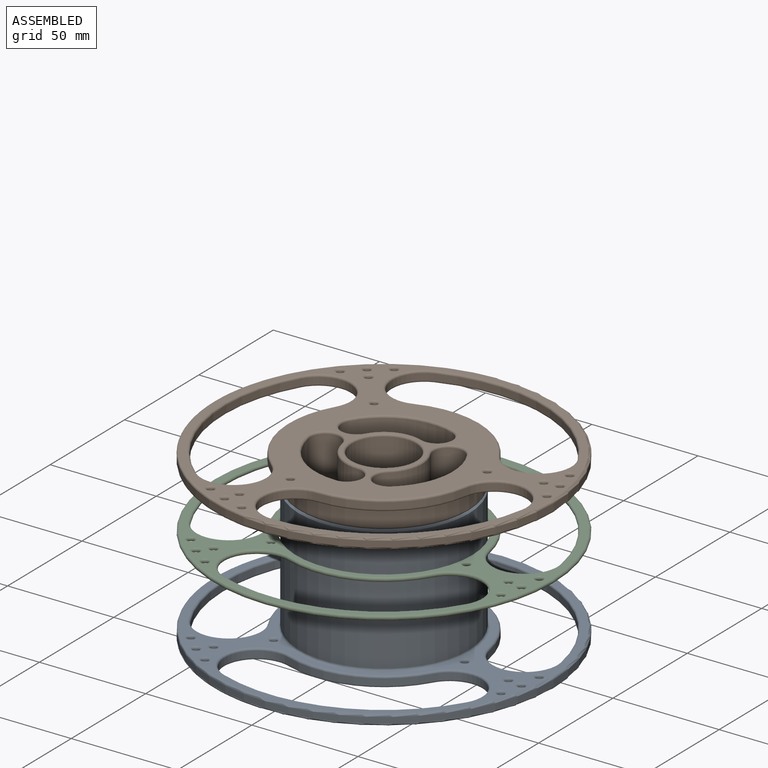
[diagram: assembled view]
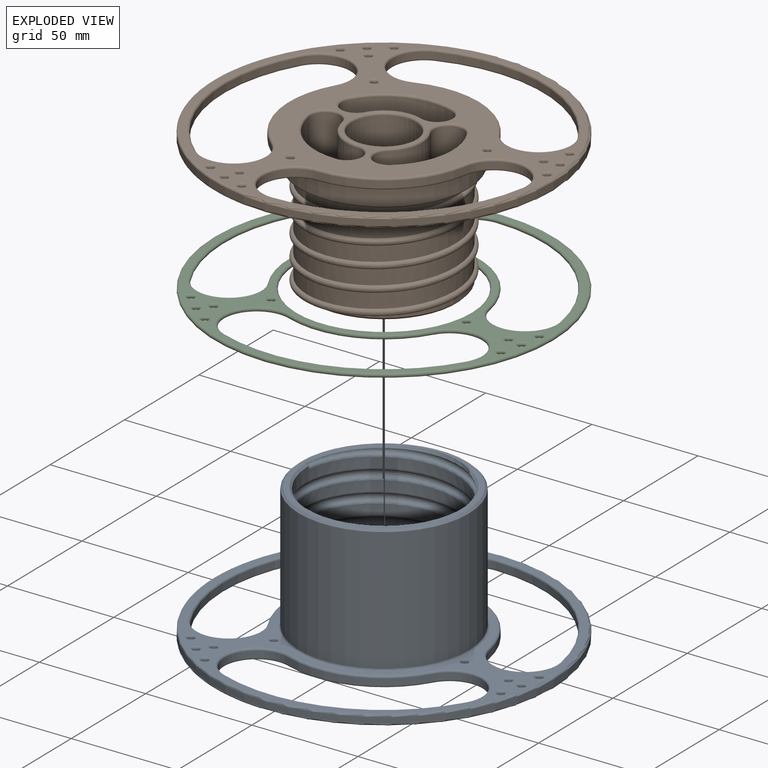
[diagram: exploded view]
GUIDED TOUR — MATED ASSEMBLY (Onshape document 5cb44882db1481e3dcc455d7, AutoMate assembly 5cb44882db1481e3dcc455d7_1ca06b4bcc2b55dcc0c4c54a_33080b575c8e08075111d6f5_default)

This assembly has 3 components, labeled P0..P2 below (a component is one placed occurrence of a part; the same part can appear more than once), held together by 2 mates. A mate is a constraint between two components; its type names the relative motion it leaves free:
  SLIDER — leaves translation along the listed axis free.
Axis/direction vectors are unit vectors and 'through' points are millimeter coordinates, both in the assembly's world frame.

MATES
  1. SLIDER "Slider 2": P0 <-> P2, axis (0.000, 0.000, -1.000) through (-48.98, -62.56, -77.92) mm
  2. SLIDER "Slider 1": P1 <-> P0, axis (0.000, 0.000, 1.000) through (-48.98, -62.56, -68.92) mm

ASSEMBLY ORDER
  1. P0 — the base component [order heuristic]
  2. P1 [order heuristic]
  3. P2 [order heuristic]
Order-tag legend:
  [order heuristic] — this assembly is geometrically interlocked (no collision-free removal order exists), so components are listed in mate-graph order; insertion feasibility is not verified.

Of the 3 components, 1 carries the full construction recipe — the FeatureScript program that regenerates the part's solid from scratch; the rest are supplied as boundary geometry only.
Each toured component is shown spotlighted twice — in the assembled view, then in the exploded view, where a leader line traces a displaced component back to its assembled socket (saturated green if recipe-attached, orange if geometry-only; every other component desaturated gray) — followed by its recipe or geometry summary and the mates that hold it.
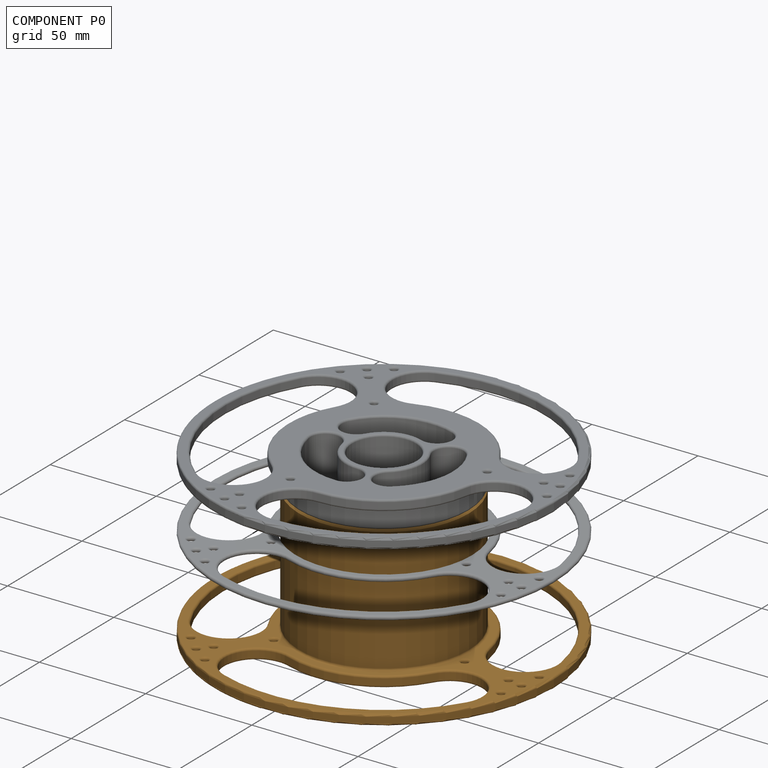
[diagram: component P0 — assembled]
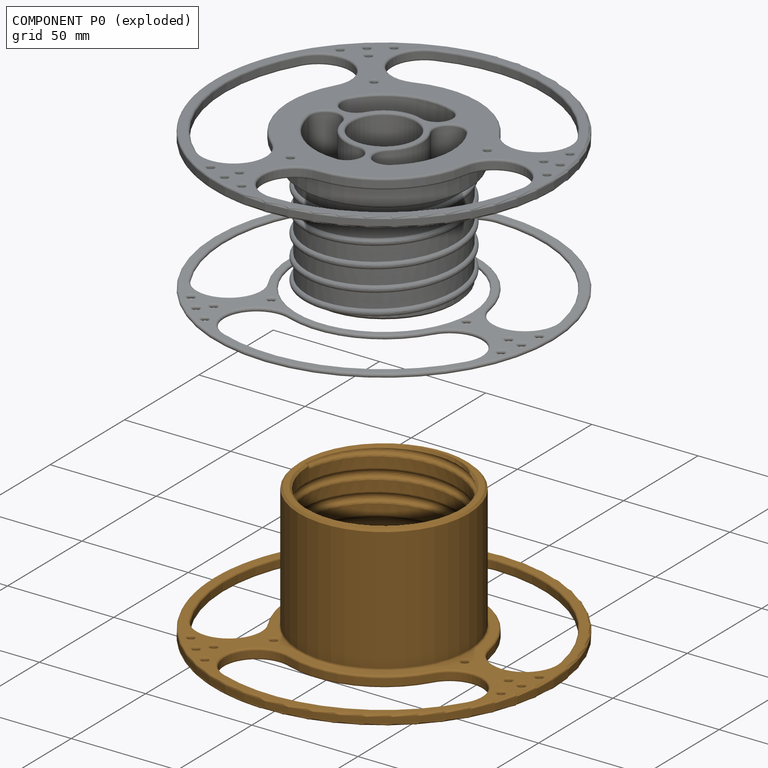
[diagram: component P0 — exploded]
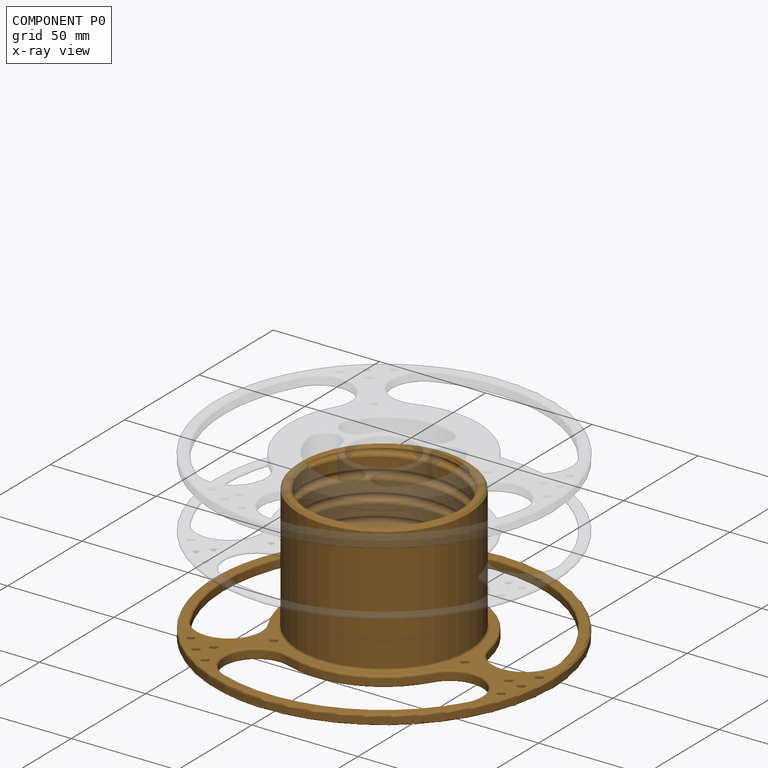
[diagram: component P0 — x-ray view]
COMPONENT P0 — geometry summary (no construction recipe available for this part):
  bounding box: 173.2 x 173.2 x 68.5 mm
  B-rep topology: 1 solid, 147 faces, 676 edges
  volume: 93744 mm^3 (5% of its bounding box)
Held by: SLIDER mate "Slider 2" to P2; SLIDER mate "Slider 1" to P1.
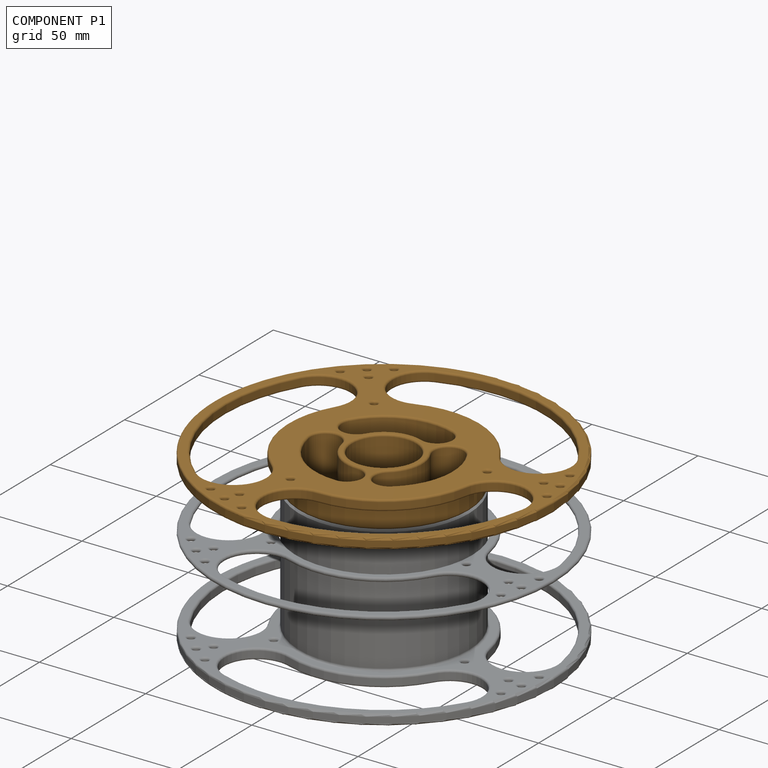
[diagram: component P1 — assembled]
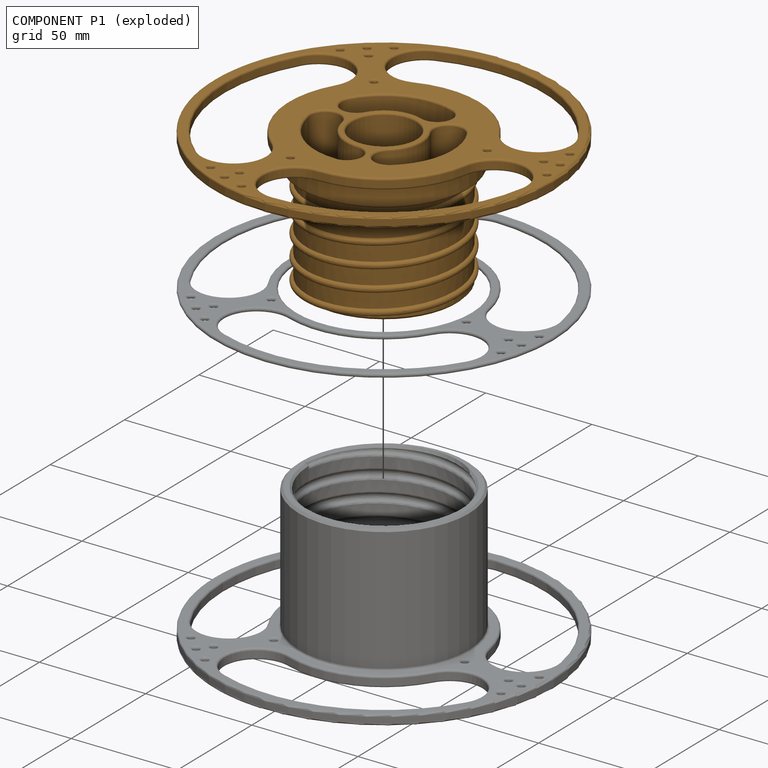
[diagram: component P1 — exploded]
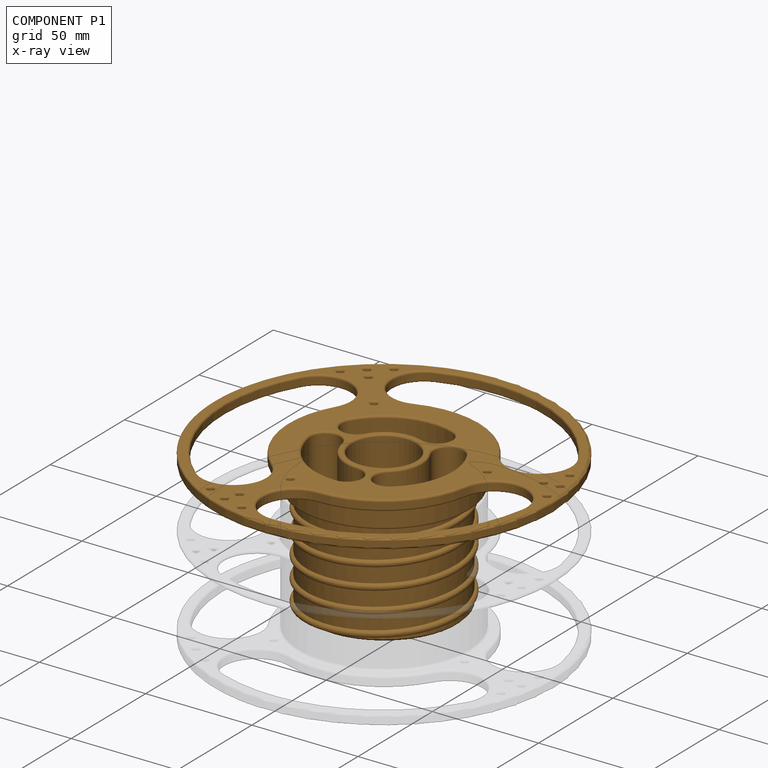
[diagram: component P1 — x-ray view]
COMPONENT P1 — geometry summary (no construction recipe available for this part):
  bounding box: 173.9 x 173.9 x 68.8 mm
  B-rep topology: 1 solid, 125 faces, 584 edges
  volume: 130349 mm^3 (6% of its bounding box)
Held by: SLIDER mate "Slider 1" to P0.
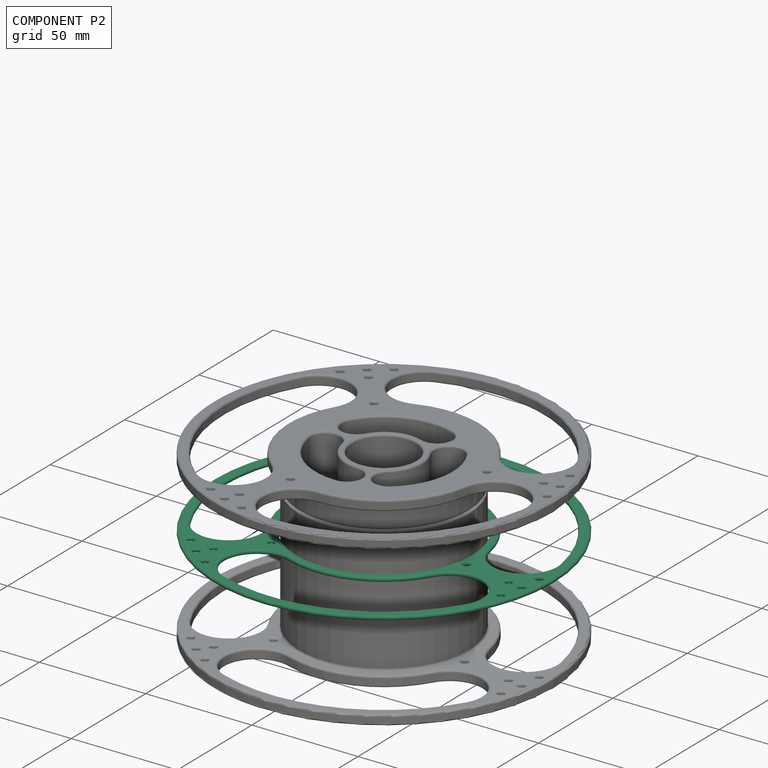
[diagram: component P2 — assembled]
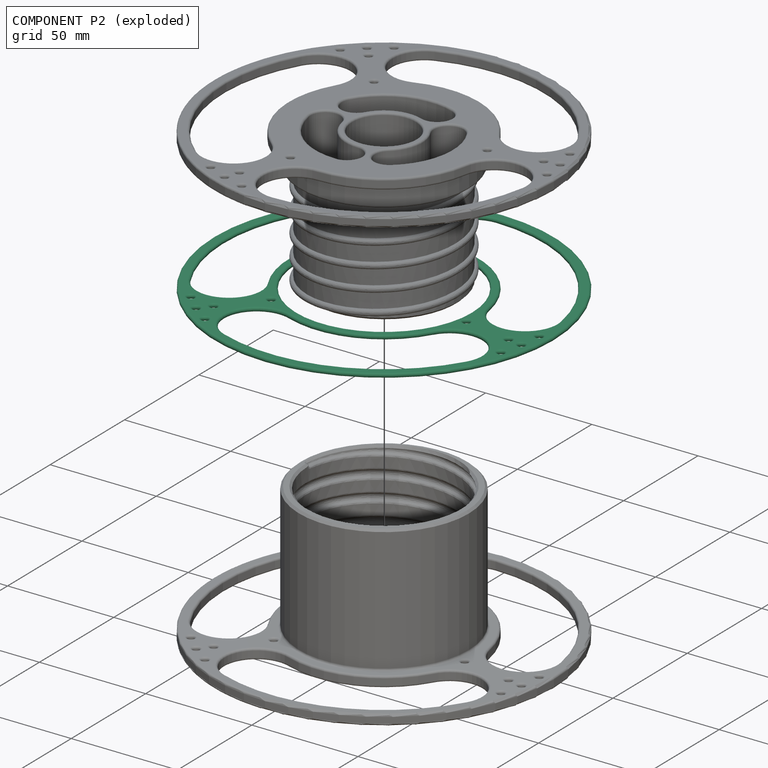
[diagram: component P2 — exploded]
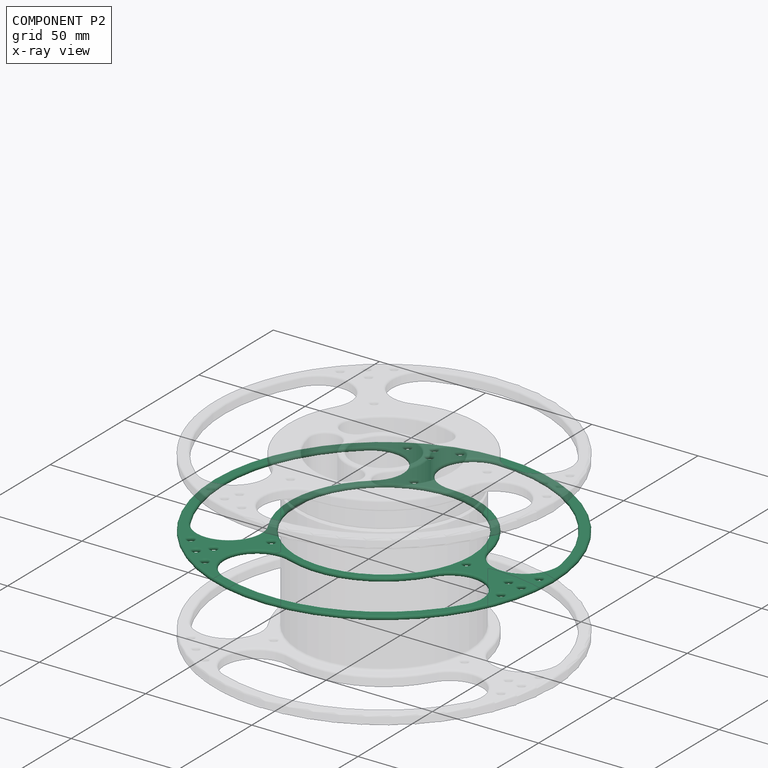
[diagram: component P2 — x-ray view]
COMPONENT P2 — recipe-attached (CADFS 00185434, mesh-verified: the recipe's output STEP matches this component's geometry to below the mesh-comparison resolution (tessellation chordal tolerance ~0.339 mm)).
Held by: SLIDER mate "Slider 2" to P0.
Construction recipe (FeatureScript — the CAD program that rebuilds this solid; sketch coordinates are in the units given by the * unit suffixes, e.g. mm):

FeatureScript 1511;
import(path : "onshape/std/geometry.fs", version : "1511.0");
import(path : "onshape/std/common.fs", version : "1511.0");
const mm = millimeter;
const VERTEX = EntityType.VERTEX;
const EDGE = EntityType.EDGE;
const FACE = EntityType.FACE;
const BODY = EntityType.BODY;
function v(x, y){return vector(x, y);}
function OD(order){return orderDisambiguation(order);}
function OSD(set){return originalSetDisambiguation(set);}
function TD(topology){return topologyDisambiguation(topology);}
function TDD(query){return trueDependencyDisambiguation(query);}
function sQuery(a, b, c) {return sketchEntityQuery(a, b, c);}

annotation { "Feature Type Name" : "Feature", "Feature Type Description" : "" }
export const myFeature = defineFeature(function(context is Context, id is Id, definition is map)
    precondition{}
    {
        {
            var Q0;
            Q0=qCreatedBy(makeId("Top.planeOp"),FACE);
            var sketch = newSketch(context, id + "F0", { "sketchPlane" : qUnion([Q0])});
            skCircle(sketch, "E0", {"center": v(0, 0) * mm, "radius": 41 * mm});
            skCircle(sketch, "E1", {"center": v(0, 0) * mm, "radius": 80 * mm});
            skPoint(sketch, "E2", {"position": v(0, 41) * mm});
            skCircle(sketch, "E3", {"center": v(0, 60) * mm, "radius": 15 * mm});
            skCircle(sketch, "E4.1.0", {"center": v(-38.57, 45.96) * mm, "radius": 15 * mm});
            skCircle(sketch, "E4.2.0", {"center": v(-59.09, 10.42) * mm, "radius": 15 * mm});
            skCircle(sketch, "E4.3.0", {"center": v(-51.96, -30) * mm, "radius": 15 * mm});
            skCircle(sketch, "E4.4.0", {"center": v(-20.52, -56.38) * mm, "radius": 15 * mm});
            skCircle(sketch, "E4.5.0", {"center": v(20.52, -56.38) * mm, "radius": 15 * mm});
            skCircle(sketch, "E4.6.0", {"center": v(51.96, -30) * mm, "radius": 15 * mm});
            skCircle(sketch, "E4.7.0", {"center": v(59.09, 10.42) * mm, "radius": 15 * mm});
            skCircle(sketch, "E4.8.0", {"center": v(38.57, 45.96) * mm, "radius": 15 * mm});
            skCircle(sketch, "E5", {"center": v(0, 0) * mm, "radius": 45 * mm});
            skCircle(sketch, "E6", {"center": v(0, 0) * mm, "radius": 75 * mm});
            skLineSegment(sketch, "E7", {"start": v(0, 0) * mm, "end": v(0, 80) * mm, "construction": true});
            skLineSegment(sketch, "E8", {"start": v(0, 0) * mm, "end": v(-16.63, 78.25) * mm, "construction": true});
            skLineSegment(sketch, "E9", {"start": v(0, 0) * mm, "end": v(-27.36, 75.18) * mm, "construction": true});
            skLineSegment(sketch, "E10", {"start": v(0, 0) * mm, "end": v(-37.56, 70.64) * mm, "construction": true});
            skCircle(sketch, "E11", {"center": v(-35.21, 66.22) * mm, "radius": 1.5 * mm});
            skCircle(sketch, "E12", {"center": v(-25.65, 70.48) * mm, "radius": 1.5 * mm});
            skCircle(sketch, "E13", {"center": v(-15.6, 73.36) * mm, "radius": 1.5 * mm});
            skCircle(sketch, "E14", {"center": v(-23.26, 63.9) * mm, "radius": 1.5 * mm});
            skCircle(sketch, "E15", {"center": v(-15.4, 42.29) * mm, "radius": 1.5 * mm});
            skCircle(sketch, "E16.1.0", {"center": v(-39.74, -63.6) * mm, "radius": 1.5 * mm});
            skCircle(sketch, "E16.1.1", {"center": v(-48.2, -57.45) * mm, "radius": 1.5 * mm});
            skCircle(sketch, "E16.1.2", {"center": v(-55.74, -50.18) * mm, "radius": 1.5 * mm});
            skCircle(sketch, "E16.1.3", {"center": v(-43.7, -52.1) * mm, "radius": 1.5 * mm});
            skCircle(sketch, "E16.1.4", {"center": v(-28.93, -34.47) * mm, "radius": 1.5 * mm});
            skCircle(sketch, "E16.2.0", {"center": v(74.95, -2.62) * mm, "radius": 1.5 * mm});
            skCircle(sketch, "E16.2.1", {"center": v(73.86, -13.02) * mm, "radius": 1.5 * mm});
            skCircle(sketch, "E16.2.2", {"center": v(71.33, -23.18) * mm, "radius": 1.5 * mm});
            skCircle(sketch, "E16.2.3", {"center": v(66.97, -11.8) * mm, "radius": 1.5 * mm});
            skCircle(sketch, "E16.2.4", {"center": v(44.32, -7.81) * mm, "radius": 1.5 * mm});
            skSolve(sketch);
        }
        {
            var Q0;
            Q0=makeQuery(id+"F0.imprint","IMPRINT",FACE,{"disambiguationData":[TD([[makeQuery(id+"F0.imprint","IMPRINT",EDGE,{"derivedFrom":sQuery(id+"F0.wireOp",EDGE,"E0")}),-1.0]])]});
            var Q1;
            Q1=makeQuery(id+"F0.imprint","IMPRINT",FACE,{"disambiguationData":[TD([[makeQuery(id+"F0.imprint","IMPRINT",EDGE,{"derivedFrom":sQuery(id+"F0.wireOp",EDGE,"E1")}),1.0]])]});
            var Q2;
            Q2=makeQuery(id+"F0.imprint","IMPRINT",FACE,{"disambiguationData":[TD([[makeQuery(id+"F0.imprint","IMPRINT",EDGE,{"derivedFrom":sQuery(id+"F0.wireOp",EDGE,"12144231-284d-4df9-a641-a248ca5025e5")}),1.0]])]});
            var Q3;
            Q3=makeQuery(id+"F0.imprint","IMPRINT",FACE,{"disambiguationData":[TD([[makeQuery(id+"F0.imprint","IMPRINT",EDGE,{"derivedFrom":sQuery(id+"F0.wireOp",EDGE,"39315ff6-fe9a-4697-a772-5aedfbdf977a")}),-1.0]])]});
            var Q4;
            {var subQ0=sQuery(id+"F0.wireOp",EDGE,"E5");var subQ6=sQuery(id+"F0.wireOp",EDGE,"E4.1.0");var subQ8=makeQuery(id+"F0.imprint","INTERSECT",VERTEX,{"derivedFrom":[subQ6,subQ0]});Q4=makeQuery(id+"F0.imprint","IMPRINT",FACE,{"disambiguationData":[TD([[makeQuery(id+"F0.imprint","IMPRINT",EDGE,{"disambiguationData":[TD([[subQ8,-1.0]])],"derivedFrom":subQ6}),-1.0]])]});}
            var Q5;
            {var subQ0=sQuery(id+"F0.wireOp",EDGE,"E5");var subQ1=sQuery(id+"F0.wireOp",EDGE,"E4.3.0");var subQ2=makeQuery(id+"F0.imprint","INTERSECT",VERTEX,{"derivedFrom":[subQ1,subQ0]});Q5=makeQuery(id+"F0.imprint","IMPRINT",FACE,{"disambiguationData":[TD([[makeQuery(id+"F0.imprint","IMPRINT",EDGE,{"disambiguationData":[TD([[subQ2,1.0]])],"derivedFrom":subQ1}),-1.0]])]});}
            var Q6;
            {var subQ0=sQuery(id+"F0.wireOp",EDGE,"E5");var subQ1=sQuery(id+"F0.wireOp",EDGE,"E4.6.0");var subQ2=makeQuery(id+"F0.imprint","INTERSECT",VERTEX,{"derivedFrom":[subQ1,subQ0]});Q6=makeQuery(id+"F0.imprint","IMPRINT",FACE,{"disambiguationData":[TD([[makeQuery(id+"F0.imprint","IMPRINT",EDGE,{"disambiguationData":[TD([[subQ2,1.0]])],"derivedFrom":subQ1}),-1.0]])]});}
            var Q7;
            {var subQ0=sQuery(id+"F0.wireOp",EDGE,"iCRS4vvn-fK7k-q4lI-TTiO-BZisHl7NfkP5");var subQ1=sQuery(id+"F0.wireOp",EDGE,"d2278acb-94d0-4041-99c4-45640f80405a.2.0");var subQ2=makeQuery(id+"F0.imprint","INTERSECT",VERTEX,{"derivedFrom":[subQ1,subQ0]});Q7=makeQuery(id+"F0.imprint","IMPRINT",FACE,{"disambiguationData":[TD([[makeQuery(id+"F0.imprint","IMPRINT",EDGE,{"disambiguationData":[TD([[subQ2,1.0]])],"derivedFrom":subQ1}),-1.0]])]});}
            var Q8;
            {var subQ0=sQuery(id+"F0.wireOp",EDGE,"iCRS4vvn-fK7k-q4lI-TTiO-BZisHl7NfkP5");var subQ6=sQuery(id+"F0.wireOp",EDGE,"d2278acb-94d0-4041-99c4-45640f80405a.8.0");var subQ7=makeQuery(id+"F0.imprint","INTERSECT",VERTEX,{"derivedFrom":[subQ6,subQ0]});Q8=makeQuery(id+"F0.imprint","IMPRINT",FACE,{"disambiguationData":[TD([[makeQuery(id+"F0.imprint","IMPRINT",EDGE,{"disambiguationData":[TD([[subQ7,1.0]])],"derivedFrom":subQ6}),-1.0]])]});}
            var Q9;
            {var subQ0=sQuery(id+"F0.wireOp",EDGE,"iCRS4vvn-fK7k-q4lI-TTiO-BZisHl7NfkP5");var subQ1=sQuery(id+"F0.wireOp",EDGE,"d2278acb-94d0-4041-99c4-45640f80405a.5.0");var subQ2=makeQuery(id+"F0.imprint","INTERSECT",VERTEX,{"derivedFrom":[subQ1,subQ0]});Q9=makeQuery(id+"F0.imprint","IMPRINT",FACE,{"disambiguationData":[TD([[makeQuery(id+"F0.imprint","IMPRINT",EDGE,{"disambiguationData":[TD([[subQ2,1.0]])],"derivedFrom":subQ1}),-1.0]])]});}
            extrude(context, id + "F1", {"entities" : qUnion([Q0, Q1, Q2, Q3, Q4, Q5, Q6, Q7, Q8, Q9]), "oppositeDirection" : true, "depth" : 2 * mm});
        }
        {
            var Q0;
            {var subQ0=sQuery(id+"F0.wireOp",EDGE,"E5");var subQ3=sQuery(id+"F0.wireOp",EDGE,"E4.3.0");var subQ4=sQuery(id+"F0.wireOp",EDGE,"E4.1.0");var subQ7=sQuery(id+"F0.wireOp",EDGE,"E3");var subQ9=sQuery(id+"F0.wireOp",EDGE,"E4.7.0");var subQ10=sQuery(id+"F0.wireOp",EDGE,"E4.6.0");var subQ11=sQuery(id+"F0.wireOp",EDGE,"E6");var subQ14=sQuery(id+"F0.wireOp",EDGE,"E4.4.0");var subQ15=sQuery(id+"F0.wireOp",EDGE,"91143b4f-f01d-424d-a080-ab716d14144e.1.0");var subQ16=sQuery(id+"F0.wireOp",EDGE,"DUbeLfhc-KFOZ-IpYY-nPxA-Tqe8eofQ2sMU");var subQ17=sQuery(id+"F0.wireOp",EDGE,"E1");var subQ18=sQuery(id+"F0.wireOp",EDGE,"ki0pbCab-z4uQ-DABq-K0KA-hCvC2e9yv8la");var subQ22=sQuery(id+"F0.wireOp",EDGE,"91143b4f-f01d-424d-a080-ab716d14144e.1.1");var subQ23=sQuery(id+"F0.wireOp",EDGE,"91143b4f-f01d-424d-a080-ab716d14144e.2.0");var subQ24=sQuery(id+"F0.wireOp",EDGE,"91143b4f-f01d-424d-a080-ab716d14144e.2.1");Q0=makeQuery(id+"F1.boolean.opBoolean","SPLIT",FACE,{"disambiguationData":[TD([makeQuery(id+"Fp+TmqwSZFw9QQVvP_0.opExtrude","SWEPT_FACE",FACE,{"disambiguationData":[OSD([sQuery(id+"F0.wireOp",EDGE,"E0")])]})])],"derivedFrom":makeQuery(id+"F1.opExtrude","CAP_FACE",FACE,{"disambiguationData":[OSD([sQuery(id+"F0.wireOp",EDGE,"39315ff6-fe9a-4697-a772-5aedfbdf977a"),subQ17,subQ7,sQuery(id+"F0.wireOp",EDGE,"088b27ed-a362-4ca8-a1c4-84918d803915"),subQ4,subQ3,subQ14,subQ10,subQ9,subQ0,subQ11,sQuery(id+"F0.wireOp",EDGE,"d2278acb-94d0-4041-99c4-45640f80405a.2.0"),sQuery(id+"F0.wireOp",EDGE,"d2278acb-94d0-4041-99c4-45640f80405a.3.0"),sQuery(id+"F0.wireOp",EDGE,"d2278acb-94d0-4041-99c4-45640f80405a.5.0"),sQuery(id+"F0.wireOp",EDGE,"d2278acb-94d0-4041-99c4-45640f80405a.6.0"),sQuery(id+"F0.wireOp",EDGE,"d2278acb-94d0-4041-99c4-45640f80405a.8.0"),sQuery(id+"F0.wireOp",EDGE,"iCRS4vvn-fK7k-q4lI-TTiO-BZisHl7NfkP5"),sQuery(id+"F0.wireOp",EDGE,"ewECKdEy-OtgB-HKcG-UGzn-Avy0xrEZuJEq"),subQ18,subQ16,subQ15,subQ22,subQ23,subQ24])],"isStart":true})});}
            var Q1;
            Q1=makeQuery(id+"F1.opExtrude","CAP_FACE",FACE,{"disambiguationData":[OSD([sQuery(id+"F0.wireOp",EDGE,"39315ff6-fe9a-4697-a772-5aedfbdf977a"),sQuery(id+"F0.wireOp",EDGE,"E1"),sQuery(id+"F0.wireOp",EDGE,"E3"),sQuery(id+"F0.wireOp",EDGE,"088b27ed-a362-4ca8-a1c4-84918d803915"),sQuery(id+"F0.wireOp",EDGE,"E4.1.0"),sQuery(id+"F0.wireOp",EDGE,"E4.3.0"),sQuery(id+"F0.wireOp",EDGE,"E4.4.0"),sQuery(id+"F0.wireOp",EDGE,"E4.6.0"),sQuery(id+"F0.wireOp",EDGE,"E4.7.0"),sQuery(id+"F0.wireOp",EDGE,"E5"),sQuery(id+"F0.wireOp",EDGE,"E6"),sQuery(id+"F0.wireOp",EDGE,"d2278acb-94d0-4041-99c4-45640f80405a.2.0"),sQuery(id+"F0.wireOp",EDGE,"d2278acb-94d0-4041-99c4-45640f80405a.3.0"),sQuery(id+"F0.wireOp",EDGE,"d2278acb-94d0-4041-99c4-45640f80405a.5.0"),sQuery(id+"F0.wireOp",EDGE,"d2278acb-94d0-4041-99c4-45640f80405a.6.0"),sQuery(id+"F0.wireOp",EDGE,"d2278acb-94d0-4041-99c4-45640f80405a.8.0"),sQuery(id+"F0.wireOp",EDGE,"iCRS4vvn-fK7k-q4lI-TTiO-BZisHl7NfkP5"),sQuery(id+"F0.wireOp",EDGE,"ewECKdEy-OtgB-HKcG-UGzn-Avy0xrEZuJEq"),sQuery(id+"F0.wireOp",EDGE,"ki0pbCab-z4uQ-DABq-K0KA-hCvC2e9yv8la"),sQuery(id+"F0.wireOp",EDGE,"DUbeLfhc-KFOZ-IpYY-nPxA-Tqe8eofQ2sMU"),sQuery(id+"F0.wireOp",EDGE,"91143b4f-f01d-424d-a080-ab716d14144e.1.0"),sQuery(id+"F0.wireOp",EDGE,"91143b4f-f01d-424d-a080-ab716d14144e.1.1"),sQuery(id+"F0.wireOp",EDGE,"91143b4f-f01d-424d-a080-ab716d14144e.2.0"),sQuery(id+"F0.wireOp",EDGE,"91143b4f-f01d-424d-a080-ab716d14144e.2.1")])],"isStart":false});
            var Q2;
            {var subQ0=sQuery(id+"F0.wireOp",EDGE,"iCRS4vvn-fK7k-q4lI-TTiO-BZisHl7NfkP5");var subQ3=sQuery(id+"F0.wireOp",EDGE,"d2278acb-94d0-4041-99c4-45640f80405a.2.0");var subQ4=sQuery(id+"F0.wireOp",EDGE,"088b27ed-a362-4ca8-a1c4-84918d803915");var subQ6=sQuery(id+"F0.wireOp",EDGE,"d2278acb-94d0-4041-99c4-45640f80405a.6.0");var subQ9=sQuery(id+"F0.wireOp",EDGE,"d2278acb-94d0-4041-99c4-45640f80405a.8.0");var subQ10=sQuery(id+"F0.wireOp",EDGE,"39315ff6-fe9a-4697-a772-5aedfbdf977a");var subQ11=sQuery(id+"F0.wireOp",EDGE,"d2278acb-94d0-4041-99c4-45640f80405a.5.0");var subQ12=sQuery(id+"F0.wireOp",EDGE,"d2278acb-94d0-4041-99c4-45640f80405a.3.0");var subQ13=sQuery(id+"F0.wireOp",EDGE,"ewECKdEy-OtgB-HKcG-UGzn-Avy0xrEZuJEq");Q2=makeQuery(id+"F1.boolean.opBoolean","SPLIT",FACE,{"disambiguationData":[TD([makeQuery(id+"Fp+TmqwSZFw9QQVvP_0.opExtrude","SWEPT_FACE",FACE,{"disambiguationData":[OSD([sQuery(id+"F0.wireOp",EDGE,"12144231-284d-4df9-a641-a248ca5025e5")])]})])],"derivedFrom":makeQuery(id+"F1.opExtrude","CAP_FACE",FACE,{"disambiguationData":[OSD([subQ10,sQuery(id+"F0.wireOp",EDGE,"E1"),sQuery(id+"F0.wireOp",EDGE,"E3"),subQ4,sQuery(id+"F0.wireOp",EDGE,"E4.1.0"),sQuery(id+"F0.wireOp",EDGE,"E4.3.0"),sQuery(id+"F0.wireOp",EDGE,"E4.4.0"),sQuery(id+"F0.wireOp",EDGE,"E4.6.0"),sQuery(id+"F0.wireOp",EDGE,"E4.7.0"),sQuery(id+"F0.wireOp",EDGE,"E5"),sQuery(id+"F0.wireOp",EDGE,"E6"),subQ3,subQ12,subQ11,subQ6,subQ9,subQ0,subQ13,sQuery(id+"F0.wireOp",EDGE,"ki0pbCab-z4uQ-DABq-K0KA-hCvC2e9yv8la"),sQuery(id+"F0.wireOp",EDGE,"DUbeLfhc-KFOZ-IpYY-nPxA-Tqe8eofQ2sMU"),sQuery(id+"F0.wireOp",EDGE,"91143b4f-f01d-424d-a080-ab716d14144e.1.0"),sQuery(id+"F0.wireOp",EDGE,"91143b4f-f01d-424d-a080-ab716d14144e.1.1"),sQuery(id+"F0.wireOp",EDGE,"91143b4f-f01d-424d-a080-ab716d14144e.2.0"),sQuery(id+"F0.wireOp",EDGE,"91143b4f-f01d-424d-a080-ab716d14144e.2.1")])],"isStart":true})});}
            fillet(context, id + "F2", {"entities" : qUnion([Q0, Q1, Q2]), "radius" : 1 * mm, "tangentPropagation" : true, "allowEdgeOverflow" : false});
        }
    });
PROVENANCE & LICENSES
Assembly (occurrences, transforms, mates, per-part STEP geometry): AutoMate dataset, Zenodo record 7776208, CC0.
Construction recipes: CADFS (HuggingFace VladPyatov/CADFS, CC-BY-4.0, layered over the ABC dataset), FeatureScript reconstruction programs keyed by ABC model id.
Join: ABC meta listings map ABC model id -> Onshape documentId; within a shared document, parts are matched by geometric signature (bounding-box dims + volume at 0.1% relative tolerance, exact B-rep face/solid counts).
Verification: 1 of this assembly's 3 components carries a recipe attachment, and every attachment is mesh-verified: the CADFS STEP and the AutoMate member STEP were compared as meshes in their shared local frame (symmetric sampled-point-to-mesh distance); worst across the 1 attachment: below the mesh-comparison resolution (tessellation chordal tolerance ~0.339 mm) on a 226 mm part.
Renders: orthographic iso camera (az 35 / el 25); the floor grid conveys scale (grid pitch printed in each image; no ruler). In the exploded view each component is displaced by its stored offset vector: the offsets alone carry the explosion direction (mate normal/axis signs are not orientation cues and do not encode it), and separation distances are assigned per mate-chain, not proportionally to assembly-order depth.
